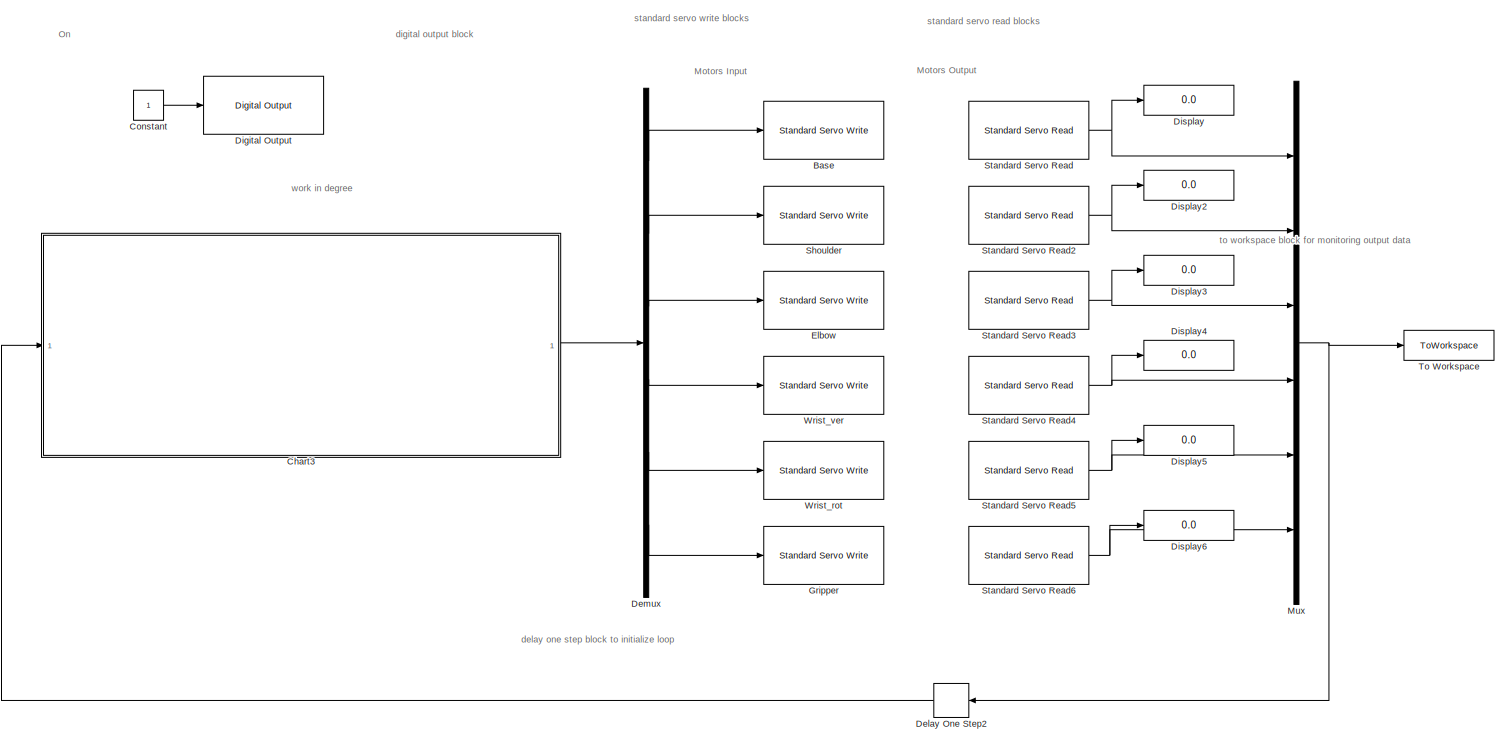
[diagram: root canvas - part 1/1, most of the canvas]
MODEL slx_11a8482896a1
KIND model
CONFIG AbsTol = auto
CONFIG EnableMultiTasking = on
CONFIG FixedStep = auto
CONFIG MaxStep = auto
CONFIG MinStep = auto
CONFIG RelTol = 1e-3
CONFIG SampleTimeConstraint = Unconstrained
CONFIG SolverName = FixedStepAuto
CONFIG StartTime = 0.0
CONFIG StopTime = inf
BLOCK [Reference] Base  REF=arduinolib/Standard Servo Write
  Ports = [1]
  SourceBlock = arduinolib/Standard Servo Write
  SourceProductBaseCode = ARDUINO
  SourceType = Arduino Standard Servo Write
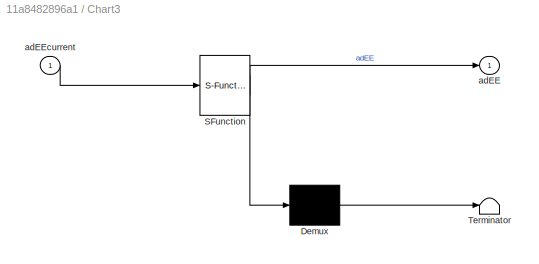
BLOCK [SubSystem] Chart3
  ErrorFcn = Stateflow.Translate.translate
  PermitHierarchicalResolution = ExplicitOnly
  Ports = [1, 1]
  RequestExecContextInheritance = off
  SFBlockType = Chart
  SystemSampleTime = 0.02
  TreatAsAtomicUnit = on
BLOCK [Demux] Chart3/ Demux 
  Outputs = 1
  Ports = [1, 1]
BLOCK [S-Function] Chart3/ SFunction 
  EnableBusSupport = on
  FunctionName = sf_sfun
  PortCounts = [1 2]
  Ports = [1, 2]
  SFcnIsStateOwnerBlock = off
  SFunctionDeploymentMode = off
  Tag = Stateflow S-Function 4
BLOCK [Terminator] Chart3/ Terminator 
BLOCK [Outport] Chart3/adEE
BLOCK [Inport] Chart3/adEEcurrent
BLOCK [Constant] Constant
BLOCK [Delay] Delay One Step2
  DelayLength = 1
  InitialCondition = [90; 90; 90; 90; 0; 0]
  InputPortMap = u0
  NameLocation = top
  Ports = [1, 1]
BLOCK [Demux] Demux
  Outputs = 6
  Ports = [1, 6]
BLOCK [Reference] Digital Output  REF=arduinolib/Digital Output
  Ports = [1]
  SourceBlock = arduinolib/Digital Output
  SourceProductBaseCode = ARDUINO
  SourceType = Arduino Digital Output
BLOCK [Display] Display
  Decimation = 1
  Ports = [1]
BLOCK [Display] Display2
  Decimation = 1
  Ports = [1]
BLOCK [Display] Display3
  Decimation = 1
  Ports = [1]
BLOCK [Display] Display4
  Decimation = 1
  Ports = [1]
BLOCK [Display] Display5
  Decimation = 1
  Ports = [1]
BLOCK [Display] Display6
  Decimation = 1
  Ports = [1]
BLOCK [Reference] Elbow  REF=arduinolib/Standard Servo Write
  Ports = [1]
  SourceBlock = arduinolib/Standard Servo Write
  SourceProductBaseCode = ARDUINO
  SourceType = Arduino Standard Servo Write
BLOCK [Reference] Gripper  REF=arduinolib/Standard Servo Write
  Ports = [1]
  SourceBlock = arduinolib/Standard Servo Write
  SourceProductBaseCode = ARDUINO
  SourceType = Arduino Standard Servo Write
BLOCK [Mux] Mux
  DisplayOption = bar
  Inputs = 6
  Ports = [6, 1]
BLOCK [Reference] Shoulder  REF=arduinolib/Standard Servo Write
  Ports = [1]
  SourceBlock = arduinolib/Standard Servo Write
  SourceProductBaseCode = ARDUINO
  SourceType = Arduino Standard Servo Write
BLOCK [Reference] Standard Servo Read  REF=arduinolib/Standard Servo Read
  Ports = [0, 1]
  SourceBlock = arduinolib/Standard Servo Read
  SourceProductBaseCode = ARDUINO
  SourceType = Arduino Standard Servo Read
BLOCK [Reference] Standard Servo Read2  REF=arduinolib/Standard Servo Read
  Ports = [0, 1]
  SourceBlock = arduinolib/Standard Servo Read
  SourceProductBaseCode = ARDUINO
  SourceType = Arduino Standard Servo Read
BLOCK [Reference] Standard Servo Read3  REF=arduinolib/Standard Servo Read
  Ports = [0, 1]
  SourceBlock = arduinolib/Standard Servo Read
  SourceProductBaseCode = ARDUINO
  SourceType = Arduino Standard Servo Read
BLOCK [Reference] Standard Servo Read4  REF=arduinolib/Standard Servo Read
  Ports = [0, 1]
  SourceBlock = arduinolib/Standard Servo Read
  SourceProductBaseCode = ARDUINO
  SourceType = Arduino Standard Servo Read
BLOCK [Reference] Standard Servo Read5  REF=arduinolib/Standard Servo Read
  Ports = [0, 1]
  SourceBlock = arduinolib/Standard Servo Read
  SourceProductBaseCode = ARDUINO
  SourceType = Arduino Standard Servo Read
BLOCK [Reference] Standard Servo Read6  REF=arduinolib/Standard Servo Read
  Ports = [0, 1]
  SourceBlock = arduinolib/Standard Servo Read
  SourceProductBaseCode = ARDUINO
  SourceType = Arduino Standard Servo Read
BLOCK [ToWorkspace] To Workspace
  FixptAsFi = on
  MaxDataPoints = inf
  Ports = [1]
  SampleTime = -1
  VariableName = jc
BLOCK [Reference] Wrist_rot  REF=arduinolib/Standard Servo Write
  Ports = [1]
  SourceBlock = arduinolib/Standard Servo Write
  SourceProductBaseCode = ARDUINO
  SourceType = Arduino Standard Servo Write
BLOCK [Reference] Wrist_ver  REF=arduinolib/Standard Servo Write
  Ports = [1]
  SourceBlock = arduinolib/Standard Servo Write
  SourceProductBaseCode = ARDUINO
  SourceType = Arduino Standard Servo Write
ANNOTATION (root): to workspace block for monitoring output data
ANNOTATION (root): work in degree
ANNOTATION (root): delay one step block to initialize loop
ANNOTATION (root): digital output block
ANNOTATION (root): standard servo read blocks
ANNOTATION (root): standard servo write blocks
ANNOTATION (root): Motors Input
ANNOTATION (root): Motors Output
ANNOTATION (root): On
LINE Chart3:1 -> Demux:1
LINE Constant:1 -> Digital Output:1
LINE Delay One Step2:1 -> Chart3:1
LINE Demux:1 -> Base:1
LINE Demux:2 -> Shoulder:1
LINE Demux:3 -> Elbow:1
LINE Demux:4 -> Wrist_ver:1
LINE Demux:5 -> Wrist_rot:1
LINE Demux:6 -> Gripper:1
NET Mux:1 -> Delay One Step2:1, To Workspace:1
NET Standard Servo Read2:1 -> Display2:1, Mux:2
NET Standard Servo Read3:1 -> Display3:1, Mux:3
NET Standard Servo Read4:1 -> Display4:1, Mux:4
NET Standard Servo Read5:1 -> Display5:1, Mux:5
NET Standard Servo Read6:1 -> Display6:1, Mux:6
NET Standard Servo Read:1 -> Display:1, Mux:1
note: NET lines group one-source signal fan-out (src -> all destinations, sorted); 1:1 wires keep LINE
CHART Chart3 states=4 transitions=3
  STATE_LABEL 'First\nen: adEEdesired = [0; 15; 180; 170; 0; 73];\nduring:\n  adEE = [\n      nextStep(adEEcurrent(1), adEEdesired(1));\n      nextStep(adEEcurrent(2), adEEdesired(2));\n      nextStep(adEEcurrent(3), adEEdesired(3));\n      nextStep(adEEcurrent(4), adEEdesired(4));\n      nextStep(adEEcurrent(5), adEEdesired(5));\n      nextStep(adEEcurrent(6), adEEdesired(6)); ];\n'
  STATE_LABEL 'v = nextStep(current, desired)'
  STATE_LABEL 'SCRIPT:\nfunction v = nextStep(current, desired)\nif (current < desired)\n    current = current + 1;\nend\n\nif (current > desired)\n    current = current - 1;\nend\n\nv = current;\nend\n \n'  <repeated x4 — deduplicated; at blocks: Chart3>
  STATE_LABEL 'v = nextStep(current, desired)'
  STATE_LABEL 'Last\nen: adEEdesired = [180; 165; 0; 0; 180; 10];\nduring:\n  adEE = [\n      nextStep(adEEcurrent(1), adEEdesired(1));\n      nextStep(adEEcurrent(2), adEEdesired(2));\n      nextStep(adEEcurrent(3), adEEdesired(3));\n      nextStep(adEEcurrent(4), adEEdesired(4));\n      nextStep(adEEcurrent(5), adEEdesired(5));\n      nextStep(adEEcurrent(6), adEEdesired(6)); ];\n'
  STATE_LABEL 'v = nextStep(current, desired)'
  STATE_LABEL 'v = nextStep(current, desired)'
CHART  states=0 transitions=0
